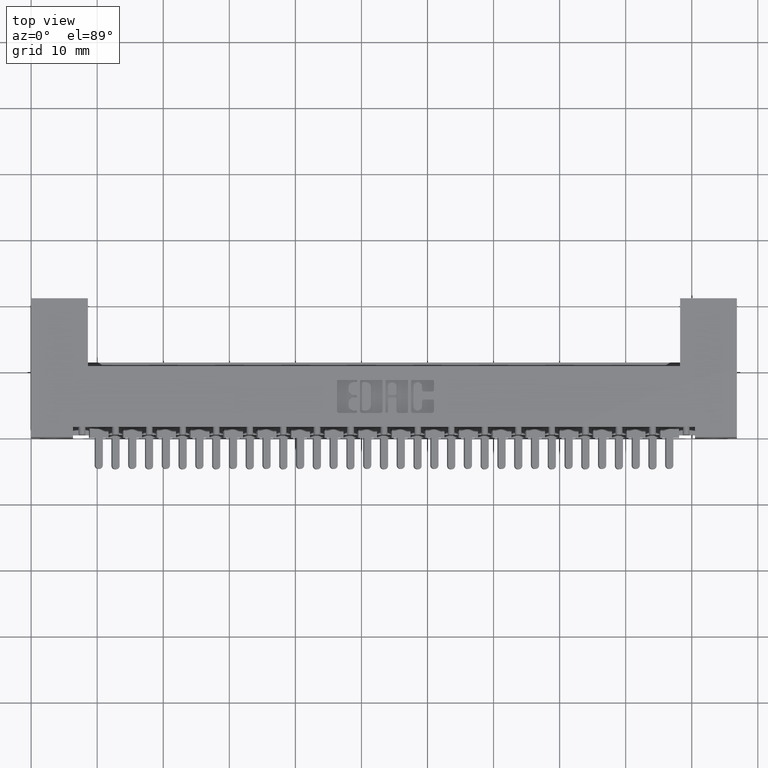
[diagram: clean part render]
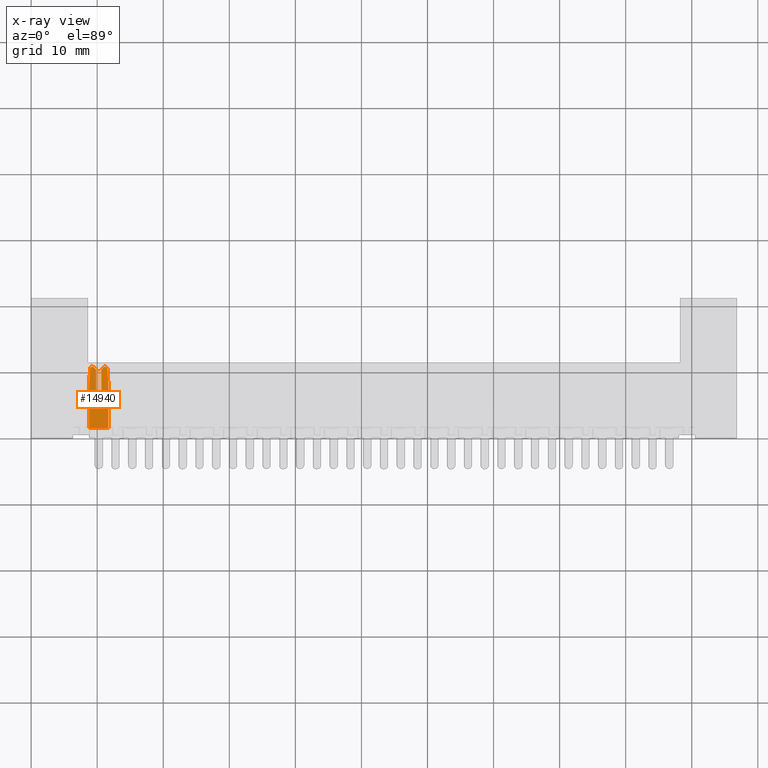
[diagram: x-ray — body ghosted, one internal face saturated and labeled with its STEP entity id]
A machine part, top view, then the same camera in x-ray: the body is ghosted and one INTERNAL B-rep face — a face not visible from any outside direction — is saturated and labeled: STEP entity #14940.
In plain terms, the highlighted planar face has unit normal (-0, -0, -1).
Its self-contained STEP definition (entity closure, byte-faithful):
#351 = CARTESIAN_POINT ( 'NONE',  ( 0.3650000000000012100, 0.04999999999999373000, -0.02500000000000000500 ) ) ;
#534 = DIRECTION ( 'NONE',  ( 0.0000000000000000000, 0.0000000000000000000, -1.000000000000000000 ) ) ;
#562 = VECTOR ( 'NONE', #22213, 39.37007874015748100 ) ;
#578 = LINE ( 'NONE', #21226, #17220 ) ;
#894 = EDGE_CURVE ( 'NONE', #17388, #8245, #24686, .T. ) ;
#1021 = VECTOR ( 'NONE', #26767, 39.37007874015748900 ) ;
#1155 = CARTESIAN_POINT ( 'NONE',  ( 0.3650000000000012100, 0.02085786437626675800, -0.02499999999999747900 ) ) ;
#1516 = LINE ( 'NONE', #8181, #26772 ) ;
#1724 = AXIS2_PLACEMENT_3D ( 'NONE', #16641, #5863, #18906 ) ;
#2165 = ORIENTED_EDGE ( 'NONE', *, *, #21992, .T. ) ;
#2172 = CARTESIAN_POINT ( 'NONE',  ( -3.252606517456513300E-015, 0.04249999999998896300, -0.02500000000000448000 ) ) ;
#2531 = DIRECTION ( 'NONE',  ( -3.808514212969866000E-030, 1.000000000000000000, 0.0000000000000000000 ) ) ;
#2599 = LINE ( 'NONE', #19995, #562 ) ;
#2917 = LINE ( 'NONE', #5451, #10001 ) ;
#2962 = CARTESIAN_POINT ( 'NONE',  ( 0.3620710678118667600, 0.02792893218813203100, -0.02499999999999850300 ) ) ;
#3104 = DIRECTION ( 'NONE',  ( -0.9975640502598244200, -0.06975647374412197200, -0.0000000000000000000 ) ) ;
#3324 = VERTEX_POINT ( 'NONE', #7111 ) ;
#3626 = DIRECTION ( 'NONE',  ( -1.000000000000000000, 0.0000000000000000000, 0.0000000000000000000 ) ) ;
#3766 = DIRECTION ( 'NONE',  ( 3.808514212969866000E-030, -1.000000000000000000, -0.0000000000000000000 ) ) ;
#4638 = AXIS2_PLACEMENT_3D ( 'NONE', #25703, #27913, #3626 ) ;
#4750 = DIRECTION ( 'NONE',  ( 0.0000000000000000000, 0.0000000000000000000, -1.000000000000000000 ) ) ;
#5043 = VECTOR ( 'NONE', #6394, 39.37007874015748100 ) ;
#5333 = CARTESIAN_POINT ( 'NONE',  ( 0.1249999999999963800, 0.06499999999999343800, -0.02499999999999481500 ) ) ;
#5451 = CARTESIAN_POINT ( 'NONE',  ( 0.009291934196944925600, -0.01788084982984830900, -0.02499999999999686500 ) ) ;
#5747 = CARTESIAN_POINT ( 'NONE',  ( 0.3475000000000012000, 0.07249999999999383300, -0.02500000000000495900 ) ) ;
#5863 = DIRECTION ( 'NONE',  ( 0.0000000000000000000, 0.0000000000000000000, -1.000000000000000000 ) ) ;
#5982 = VERTEX_POINT ( 'NONE', #19983 ) ;
#6130 = ORIENTED_EDGE ( 'NONE', *, *, #25698, .T. ) ;
#6394 = DIRECTION ( 'NONE',  ( 1.000000000000000000, -3.557093741750850300E-017, 0.0000000000000000000 ) ) ;
#6640 = ORIENTED_EDGE ( 'NONE', *, *, #14139, .F. ) ;
#6939 = CARTESIAN_POINT ( 'NONE',  ( 0.2649999999999951800, -2.185478394931410600E-015, -0.02500000000000106700 ) ) ;
#7036 = DIRECTION ( 'NONE',  ( -1.000000000000000000, 4.115892632094068900E-030, 0.0000000000000000000 ) ) ;
#7111 = CARTESIAN_POINT ( 'NONE',  ( 0.3556975647374423500, 0.006342191553127313500, -0.02499999999999747900 ) ) ;
#7286 = VERTEX_POINT ( 'NONE', #9371 ) ;
#7467 = ORIENTED_EDGE ( 'NONE', *, *, #14555, .F. ) ;
#7660 = ORIENTED_EDGE ( 'NONE', *, *, #14348, .F. ) ;
#7679 = CARTESIAN_POINT ( 'NONE',  ( 0.3650000000000012100, 0.09414213562372258900, -0.02500000000000448000 ) ) ;
#8041 = DIRECTION ( 'NONE',  ( -0.7071067811865466800, -0.7071067811865483500, -0.0000000000000000000 ) ) ;
#8181 = CARTESIAN_POINT ( 'NONE',  ( -2.996495768050488900E-015, 0.1149999999999909800, -0.02499999999999747900 ) ) ;
#8245 = VERTEX_POINT ( 'NONE', #28079 ) ;
#8640 = VERTEX_POINT ( 'NONE', #21724 ) ;
#8830 = VECTOR ( 'NONE', #2531, 39.37007874015748100 ) ;
#8893 = VERTEX_POINT ( 'NONE', #2962 ) ;
#8976 = LINE ( 'NONE', #5333, #19915 ) ;
#9371 = CARTESIAN_POINT ( 'NONE',  ( 0.1249999999999963800, 0.04249999999998896300, -0.02500000000000000500 ) ) ;
#9511 = AXIS2_PLACEMENT_3D ( 'NONE', #26529, #18034, #15566 ) ;
#9665 = DIRECTION ( 'NONE',  ( -3.808514212969866000E-030, 1.000000000000000000, 0.0000000000000000000 ) ) ;
#10001 = VECTOR ( 'NONE', #3104, 39.37007874015748900 ) ;
#10458 = ORIENTED_EDGE ( 'NONE', *, *, #12462, .T. ) ;
#11183 = AXIS2_PLACEMENT_3D ( 'NONE', #15789, #4750, #24655 ) ;
#11443 = CARTESIAN_POINT ( 'NONE',  ( 0.1374999999999967400, 0.2524999999999837400, -0.02499999999999747900 ) ) ;
#11624 = CARTESIAN_POINT ( 'NONE',  ( 0.3620710678118666000, 0.08707106781185731900, -0.02500000000000448000 ) ) ;
#11979 = ORIENTED_EDGE ( 'NONE', *, *, #894, .F. ) ;
#11998 = VERTEX_POINT ( 'NONE', #6939 ) ;
#12140 = CARTESIAN_POINT ( 'NONE',  ( 0.1950000000000008900, -0.08000000000000843900, -0.02500000000000000500 ) ) ;
#12256 = CIRCLE ( 'NONE', #4638, 0.01000000000000003000 ) ;
#12462 = EDGE_CURVE ( 'NONE', #8640, #22901, #14946, .T. ) ;
#13258 = CARTESIAN_POINT ( 'NONE',  ( 0.3650000000000012100, 0.01631783205572544600, -0.02499999999999686500 ) ) ;
#13606 = LINE ( 'NONE', #12140, #15310 ) ;
#13927 = CARTESIAN_POINT ( 'NONE',  ( 0.001289480891738791100, 0.1334404358771988100, -0.02499999999999898100 ) ) ;
#14139 = EDGE_CURVE ( 'NONE', #5982, #11998, #2599, .T. ) ;
#14273 = CARTESIAN_POINT ( 'NONE',  ( 0.3650000000000012100, 0.1149999999999909800, -0.02499999999999997400 ) ) ;
#14348 = EDGE_CURVE ( 'NONE', #7286, #20308, #8976, .T. ) ;
#14555 = EDGE_CURVE ( 'NONE', #23732, #22901, #24030, .T. ) ;
#14746 = EDGE_CURVE ( 'NONE', #8245, #5982, #1516, .T. ) ;
#14940 = ADVANCED_FACE ( 'NONE', ( #20742 ), #22227, .T. ) ;
#14946 = CIRCLE ( 'NONE', #11183, 0.01000000000000003000 ) ;
#15310 = VECTOR ( 'NONE', #8041, 39.37007874015748100 ) ;
#15455 = DIRECTION ( 'NONE',  ( -1.000000000000000000, 4.115892632094068900E-030, 0.0000000000000000000 ) ) ;
#15566 = DIRECTION ( 'NONE',  ( -1.000000000000000000, 0.0000000000000000000, 0.0000000000000000000 ) ) ;
#15789 = CARTESIAN_POINT ( 'NONE',  ( 0.3550000000000012000, 0.09868216794426336300, -0.02499999999999997400 ) ) ;
#16047 = AXIS2_PLACEMENT_3D ( 'NONE', #24028, #534, #15455 ) ;
#16058 = CIRCLE ( 'NONE', #9511, 0.01000000000000003000 ) ;
#16120 = DIRECTION ( 'NONE',  ( 0.9975640502598244200, -0.06975647374412201300, -0.0000000000000000000 ) ) ;
#16350 = ORIENTED_EDGE ( 'NONE', *, *, #16650, .T. ) ;
#16428 = EDGE_CURVE ( 'NONE', #23732, #18191, #12256, .T. ) ;
#16448 = EDGE_CURVE ( 'NONE', #8893, #27440, #19068, .T. ) ;
#16451 = DIRECTION ( 'NONE',  ( -3.808514212969866000E-030, 1.000000000000000000, 0.0000000000000000000 ) ) ;
#16482 = VECTOR ( 'NONE', #7036, 39.37007874015748100 ) ;
#16641 = CARTESIAN_POINT ( 'NONE',  ( 0.3550000000000012000, 0.02085786437626675800, -0.02499999999999898100 ) ) ;
#16650 = EDGE_CURVE ( 'NONE', #24640, #3324, #16058, .T. ) ;
#16665 = EDGE_CURVE ( 'NONE', #24640, #27440, #19767, .T. ) ;
#16947 = CARTESIAN_POINT ( 'NONE',  ( 0.1249999999999963800, 0.07249999999999383300, -0.02499999999999584200 ) ) ;
#17220 = VECTOR ( 'NONE', #21416, 39.37007874015748100 ) ;
#17388 = VERTEX_POINT ( 'NONE', #21514 ) ;
#17651 = ORIENTED_EDGE ( 'NONE', *, *, #16448, .T. ) ;
#17774 = ORIENTED_EDGE ( 'NONE', *, *, #26413, .T. ) ;
#18034 = DIRECTION ( 'NONE',  ( 0.0000000000000000000, 0.0000000000000000000, -1.000000000000000000 ) ) ;
#18191 = VERTEX_POINT ( 'NONE', #11624 ) ;
#18868 = VECTOR ( 'NONE', #16120, 39.37007874015748900 ) ;
#18906 = DIRECTION ( 'NONE',  ( -1.000000000000000000, 0.0000000000000000000, 0.0000000000000000000 ) ) ;
#19068 = CIRCLE ( 'NONE', #1724, 0.01000000000000003000 ) ;
#19575 = VECTOR ( 'NONE', #16451, 39.37007874015748100 ) ;
#19767 = LINE ( 'NONE', #351, #8830 ) ;
#19915 = VECTOR ( 'NONE', #9665, 39.37007874015748100 ) ;
#19983 = CARTESIAN_POINT ( 'NONE',  ( -1.707404996040164500E-017, -2.185478394931410600E-015, -0.02499999999999997400 ) ) ;
#19995 = CARTESIAN_POINT ( 'NONE',  ( 0.0000000000000000000, -2.185478394931410600E-015, -0.02500000000000000500 ) ) ;
#20308 = VERTEX_POINT ( 'NONE', #16947 ) ;
#20742 = FACE_OUTER_BOUND ( 'NONE', #24954, .T. ) ;
#20751 = VERTEX_POINT ( 'NONE', #5747 ) ;
#21226 = CARTESIAN_POINT ( 'NONE',  ( -2.996495768050488900E-015, 0.07249999999999383300, -0.02500000000000000500 ) ) ;
#21416 = DIRECTION ( 'NONE',  ( -1.000000000000000000, 4.115892632094068900E-030, 0.0000000000000000000 ) ) ;
#21514 = CARTESIAN_POINT ( 'NONE',  ( 0.2649999999999955200, 0.1149999999999909800, -0.02499999999999898100 ) ) ;
#21552 = EDGE_CURVE ( 'NONE', #20751, #20308, #578, .T. ) ;
#21724 = CARTESIAN_POINT ( 'NONE',  ( 0.3556975647374425200, 0.1086578084468620300, -0.02499999999999997400 ) ) ;
#21748 = LINE ( 'NONE', #2172, #5043 ) ;
#21992 = EDGE_CURVE ( 'NONE', #17388, #8640, #24718, .T. ) ;
#22033 = EDGE_CURVE ( 'NONE', #3324, #11998, #2917, .T. ) ;
#22213 = DIRECTION ( 'NONE',  ( 1.000000000000000000, -4.115892632094068900E-030, 0.0000000000000000000 ) ) ;
#22227 = PLANE ( 'NONE',  #16047 ) ;
#22341 = ORIENTED_EDGE ( 'NONE', *, *, #21552, .T. ) ;
#22427 = VERTEX_POINT ( 'NONE', #27069 ) ;
#22607 = CARTESIAN_POINT ( 'NONE',  ( -2.996495768050488900E-015, 0.1149999999999909800, -0.02499999999999747900 ) ) ;
#22691 = ORIENTED_EDGE ( 'NONE', *, *, #16665, .F. ) ;
#22804 = ORIENTED_EDGE ( 'NONE', *, *, #22033, .T. ) ;
#22901 = VERTEX_POINT ( 'NONE', #24914 ) ;
#23732 = VERTEX_POINT ( 'NONE', #7679 ) ;
#24028 = CARTESIAN_POINT ( 'NONE',  ( -2.996495768050488900E-015, 0.1149999999999909800, -0.02499999999999747900 ) ) ;
#24030 = LINE ( 'NONE', #14273, #19575 ) ;
#24640 = VERTEX_POINT ( 'NONE', #13258 ) ;
#24655 = DIRECTION ( 'NONE',  ( -1.000000000000000000, 0.0000000000000000000, 0.0000000000000000000 ) ) ;
#24686 = LINE ( 'NONE', #22607, #16482 ) ;
#24718 = LINE ( 'NONE', #13927, #18868 ) ;
#24914 = CARTESIAN_POINT ( 'NONE',  ( 0.3650000000000012100, 0.09868216794426336300, -0.02500000000000495900 ) ) ;
#24954 = EDGE_LOOP ( 'NONE', ( #6130, #22341, #7660, #17774, #27160, #17651, #22691, #16350, #22804, #6640, #26782, #11979, #2165, #10458, #7467, #26976 ) ) ;
#25698 = EDGE_CURVE ( 'NONE', #18191, #20751, #13606, .T. ) ;
#25703 = CARTESIAN_POINT ( 'NONE',  ( 0.3550000000000012000, 0.09414213562372258900, -0.02499999999999997400 ) ) ;
#25859 = LINE ( 'NONE', #11443, #1021 ) ;
#26030 = EDGE_CURVE ( 'NONE', #22427, #8893, #25859, .T. ) ;
#26413 = EDGE_CURVE ( 'NONE', #7286, #22427, #21748, .T. ) ;
#26529 = CARTESIAN_POINT ( 'NONE',  ( 0.3550000000000012000, 0.01631783205572544600, -0.02499999999999898100 ) ) ;
#26767 = DIRECTION ( 'NONE',  ( 0.7071067811865489100, -0.7071067811865460200, -0.0000000000000000000 ) ) ;
#26772 = VECTOR ( 'NONE', #3766, 39.37007874015748100 ) ;
#26782 = ORIENTED_EDGE ( 'NONE', *, *, #14746, .F. ) ;
#26976 = ORIENTED_EDGE ( 'NONE', *, *, #16428, .T. ) ;
#27069 = CARTESIAN_POINT ( 'NONE',  ( 0.3475000000000010900, 0.04249999999998896300, -0.02500000000000342200 ) ) ;
#27160 = ORIENTED_EDGE ( 'NONE', *, *, #26030, .T. ) ;
#27440 = VERTEX_POINT ( 'NONE', #1155 ) ;
#27913 = DIRECTION ( 'NONE',  ( 0.0000000000000000000, 0.0000000000000000000, -1.000000000000000000 ) ) ;
#28079 = CARTESIAN_POINT ( 'NONE',  ( -2.996495768050488900E-015, 0.1149999999999909800, -0.02499999999999747900 ) ) ;